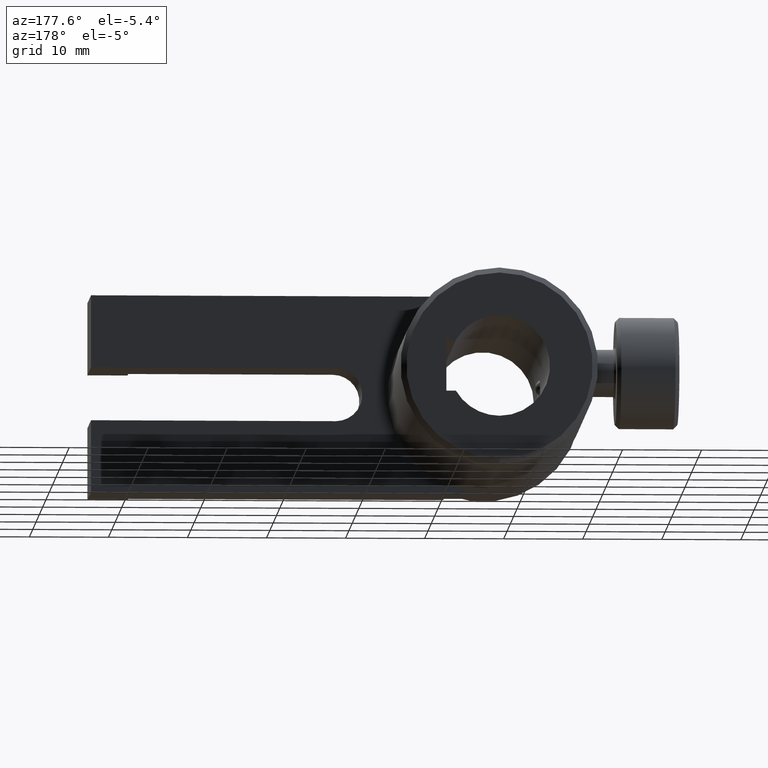
[diagram: clean part render]
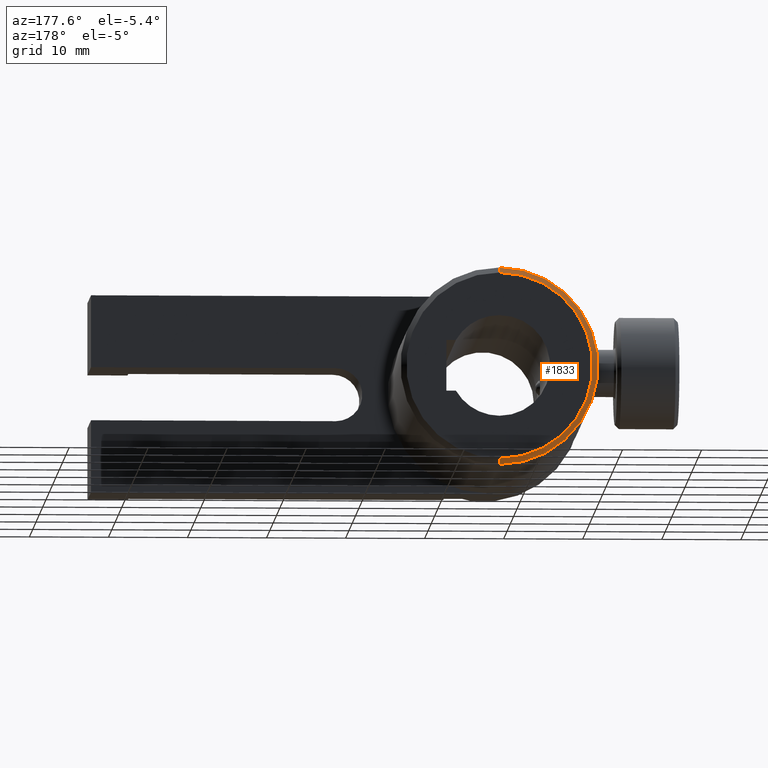
[diagram: same view with one face highlighted and labeled with its STEP entity id]
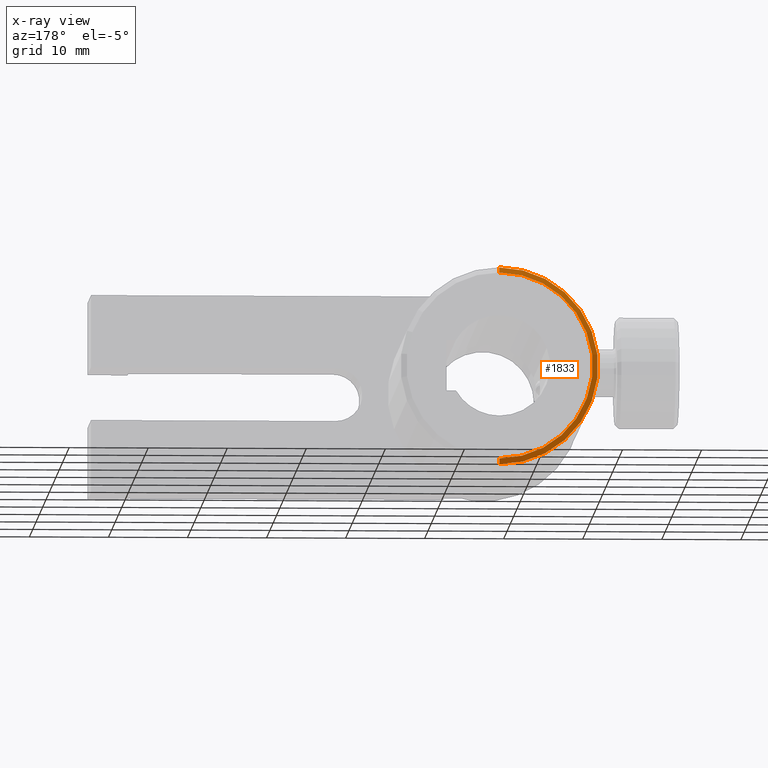
[diagram: x-ray of the same camera — body ghosted, the highlighted face saturated]
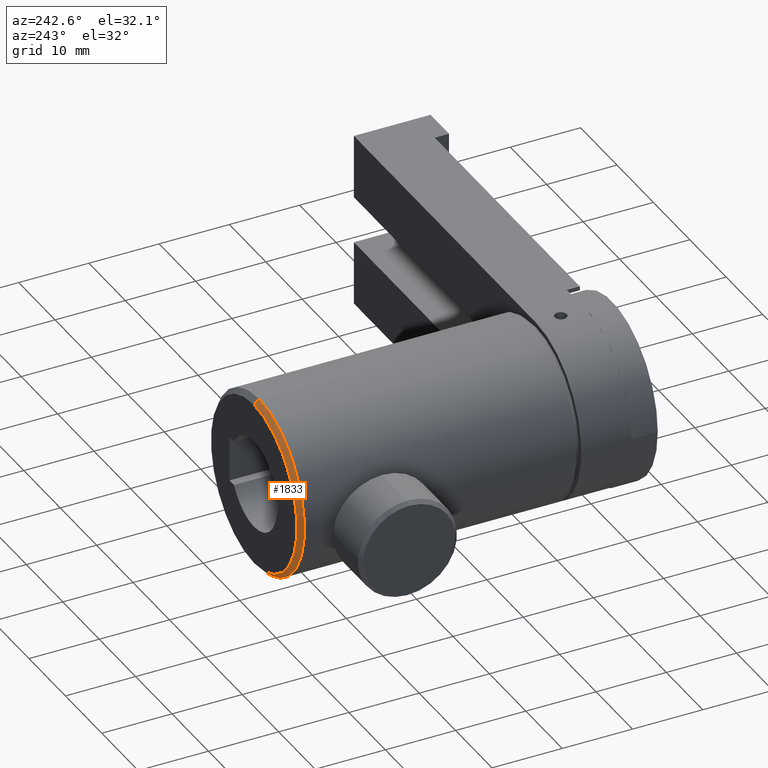
[diagram: same view with one face highlighted and labeled with its STEP entity id]
A machine part, auxiliary view. The second image highlights one B-rep face of the part: STEP entity #1833.
The next image is the same camera in x-ray: the body ghosted, the highlighted face saturated — about 0% of this face is hidden behind the body in this view.
A second angle (auxiliary view) of the same face is appended — the face is thin or edge-on in the first view.
In plain terms, the highlighted conical surface has half-angle 45 deg.
Its self-contained STEP definition (entity closure, byte-faithful):
#149 = VERTEX_POINT ( 'NONE', #3350 ) ;
#216 = DIRECTION ( 'NONE',  ( 0.0000000000000000000, -0.7071067811865422400, -0.7071067811865529000 ) ) ;
#229 = CIRCLE ( 'NONE', #3751, 12.49680000000000600 ) ;
#343 = EDGE_CURVE ( 'NONE', #2112, #2944, #3331, .T. ) ;
#493 = CARTESIAN_POINT ( 'NONE',  ( 4.123066643891380800, 45.82713478776489100, -1.839923381405735800E-015 ) ) ;
#718 = AXIS2_PLACEMENT_3D ( 'NONE', #836, #2644, #3795 ) ;
#774 = DIRECTION ( 'NONE',  ( 0.0000000000000000000, -1.000000000000000000, 0.0000000000000000000 ) ) ;
#778 = CARTESIAN_POINT ( 'NONE',  ( 4.123066643891382600, 45.82713478776489100, 11.79679999999999400 ) ) ;
#836 = CARTESIAN_POINT ( 'NONE',  ( 4.123066643891380800, 45.82713478776489100, -1.839923381405735800E-015 ) ) ;
#1015 = VECTOR ( 'NONE', #216, 1000.000000000000000 ) ;
#1051 = DIRECTION ( 'NONE',  ( 8.659560562354998200E-017, -0.7071067811865422400, 0.7071067811865529000 ) ) ;
#1091 = CARTESIAN_POINT ( 'NONE',  ( 4.123066643891380800, 45.12713478776489500, -1.839923381405735800E-015 ) ) ;
#1220 = EDGE_CURVE ( 'NONE', #2112, #1579, #1515, .T. ) ;
#1368 = VECTOR ( 'NONE', #1051, 1000.000000000000000 ) ;
#1515 = CIRCLE ( 'NONE', #718, 11.79679999999999600 ) ;
#1517 = AXIS2_PLACEMENT_3D ( 'NONE', #493, #774, #3142 ) ;
#1579 = VERTEX_POINT ( 'NONE', #778 ) ;
#1639 = CONICAL_SURFACE ( 'NONE', #1517, 11.79679999999999600, 0.7853981633974557200 ) ;
#1765 = CARTESIAN_POINT ( 'NONE',  ( 4.123066643891380800, 45.12713478776489500, -12.49680000000000700 ) ) ;
#1833 = ADVANCED_FACE ( 'NONE', ( #2629 ), #1639, .T. ) ;
#1924 = ORIENTED_EDGE ( 'NONE', *, *, #343, .T. ) ;
#2112 = VERTEX_POINT ( 'NONE', #3620 ) ;
#2151 = EDGE_LOOP ( 'NONE', ( #2849, #2523, #1924, #2913 ) ) ;
#2523 = ORIENTED_EDGE ( 'NONE', *, *, #1220, .F. ) ;
#2548 = CARTESIAN_POINT ( 'NONE',  ( 4.123066643891382600, 45.82713478776489100, 11.79679999999999400 ) ) ;
#2588 = CARTESIAN_POINT ( 'NONE',  ( 4.123066643891380800, 45.82713478776489100, -11.79679999999999800 ) ) ;
#2629 = FACE_OUTER_BOUND ( 'NONE', #2151, .T. ) ;
#2644 = DIRECTION ( 'NONE',  ( 0.0000000000000000000, 1.000000000000000000, 0.0000000000000000000 ) ) ;
#2849 = ORIENTED_EDGE ( 'NONE', *, *, #3268, .F. ) ;
#2868 = LINE ( 'NONE', #2548, #1368 ) ;
#2911 = DIRECTION ( 'NONE',  ( 0.0000000000000000000, 0.0000000000000000000, 1.000000000000000000 ) ) ;
#2913 = ORIENTED_EDGE ( 'NONE', *, *, #3330, .F. ) ;
#2944 = VERTEX_POINT ( 'NONE', #1765 ) ;
#3142 = DIRECTION ( 'NONE',  ( 0.0000000000000000000, 0.0000000000000000000, -1.000000000000000000 ) ) ;
#3268 = EDGE_CURVE ( 'NONE', #1579, #149, #2868, .T. ) ;
#3330 = EDGE_CURVE ( 'NONE', #149, #2944, #229, .T. ) ;
#3331 = LINE ( 'NONE', #2588, #1015 ) ;
#3350 = CARTESIAN_POINT ( 'NONE',  ( 4.123066643891382600, 45.12713478776489500, 12.49680000000000400 ) ) ;
#3446 = DIRECTION ( 'NONE',  ( 0.0000000000000000000, -1.000000000000000000, 0.0000000000000000000 ) ) ;
#3620 = CARTESIAN_POINT ( 'NONE',  ( 4.123066643891380800, 45.82713478776489100, -11.79679999999999800 ) ) ;
#3751 = AXIS2_PLACEMENT_3D ( 'NONE', #1091, #3446, #2911 ) ;
#3795 = DIRECTION ( 'NONE',  ( 0.0000000000000000000, 0.0000000000000000000, 1.000000000000000000 ) ) ;